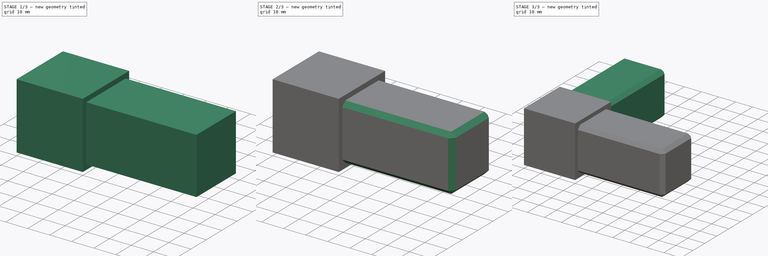
[diagram: build sequence overview — one tinted view per stage of 3, left to right]
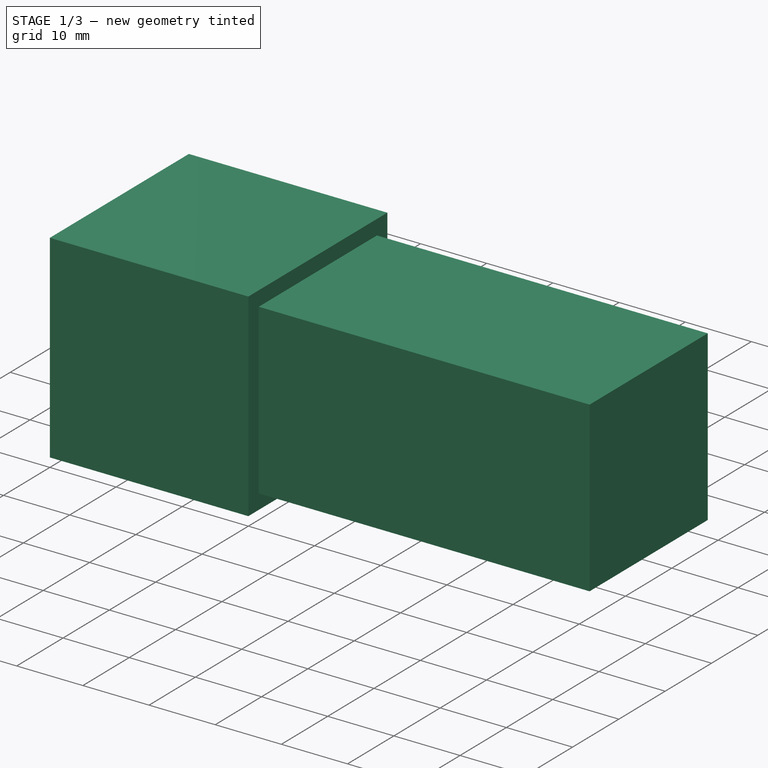
[diagram: stage 1 of 3 — iso view after this stage's code; geometry added in this stage tinted green]
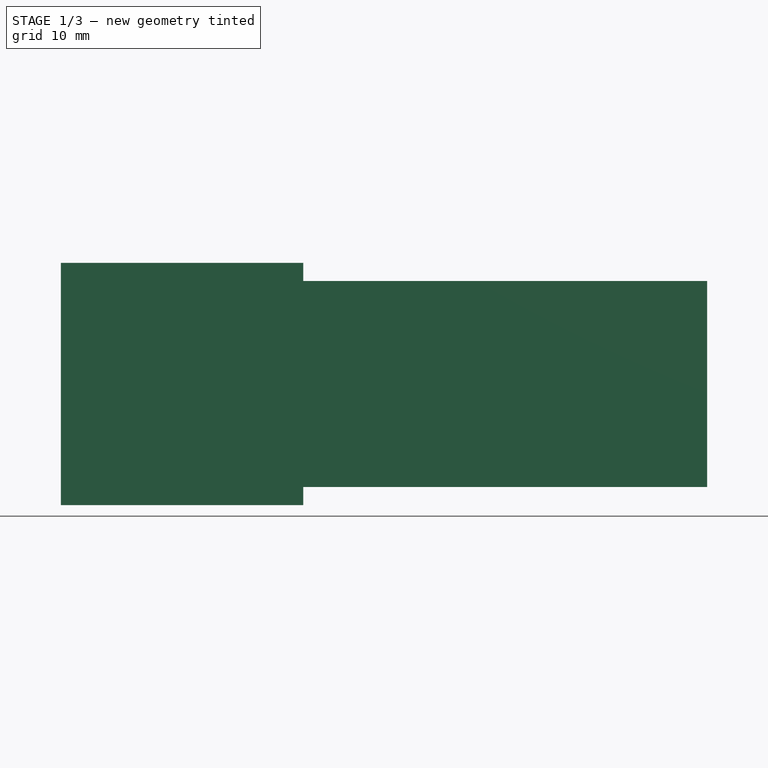
[diagram: stage 1 of 3 — front view after this stage's code; geometry added in this stage tinted green]
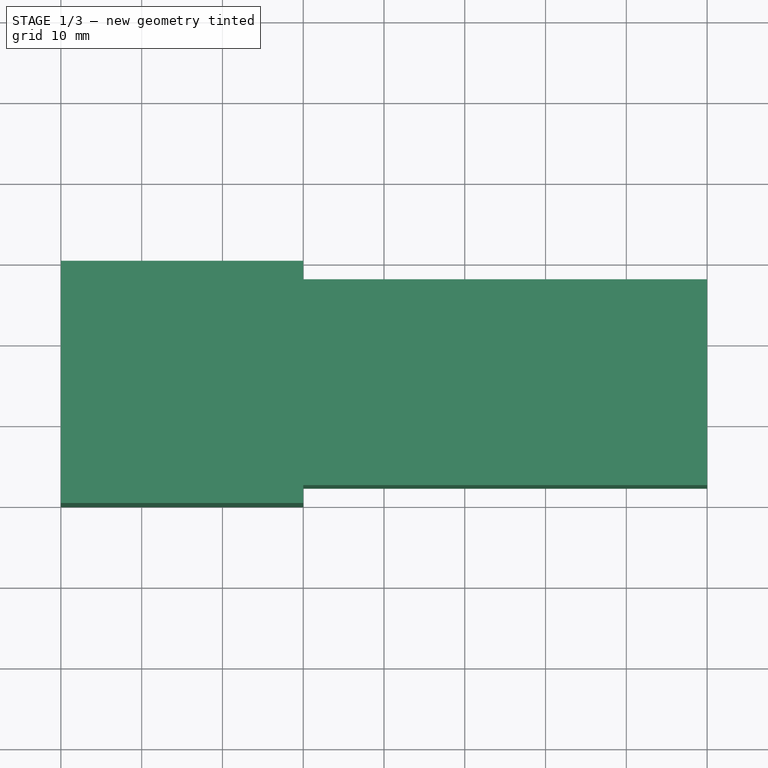
[diagram: stage 1 of 3 — top view after this stage's code; geometry added in this stage tinted green]
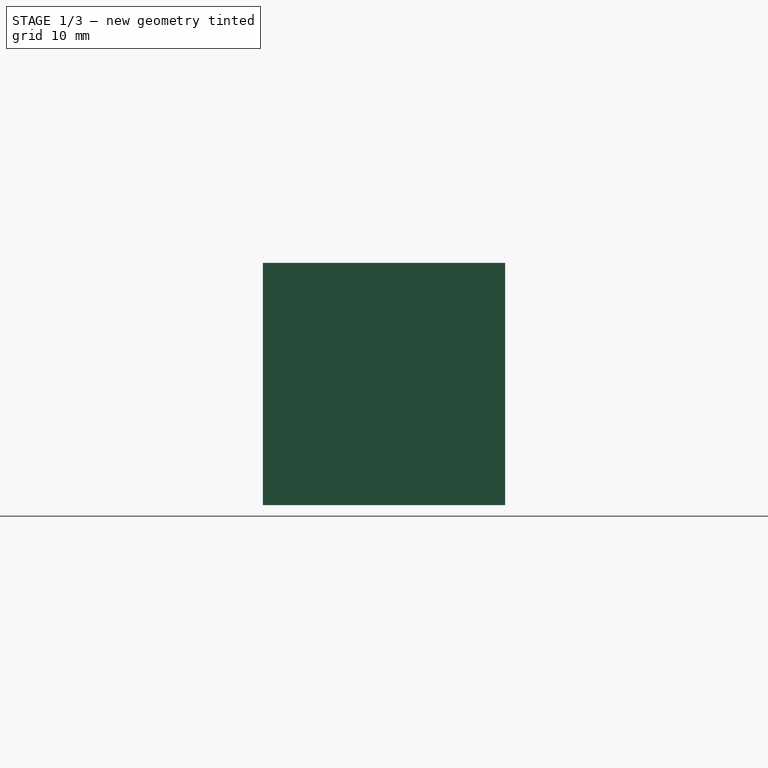
[diagram: stage 1 of 3 — right view after this stage's code; geometry added in this stage tinted green]
FCSTD DOCUMENT  (FreeCAD 0.20R29603 (Git))
Label: Eckverbinder
License: All rights reserved
LicenseURL: http://en.wikipedia.org/wiki/All_rights_reserved
objects: Sketcher::SketchObject×3, PartDesign::Pad×3, PartDesign::Chamfer×2, PartDesign::Body×1
note: 14 computed .brp shape members not serialized (recipe doc carries the construction recipe); baked Part::Feature solids carry a one-line shape summary decoded from their .brp

FEATURE [Sketcher::SketchObject] Sketch007
  FullyConstrained = true
  MapMode = 5
  Placement = pos=(0,0,0) rot=(1,0,0;1.5708rad)
  Support = -> [XZ_Plane005]
  sketch-geometry (4):
    g0: LineSegment StartX=0 StartY=0 StartZ=0 EndX=-30 EndY=0 EndZ=0
    g1: LineSegment StartX=-30 StartY=0 StartZ=0 EndX=-30 EndY=-30 EndZ=0
    g2: LineSegment StartX=-30 StartY=-30 StartZ=0 EndX=0 EndY=-30 EndZ=0
    g3: LineSegment StartX=0 StartY=-30 StartZ=0 EndX=0 EndY=0 EndZ=0
  constraints (11):
    c: Coincident(g0,g1)
    c: Coincident(g1,g2)
    c: Coincident(g2,g3)
    c: Coincident(g3,g0)
    c: Horizontal(g0)
    c: Horizontal(g2)
    c: Vertical(g1)
    c: Vertical(g3)
    c: Coincident(g0,g-1)
    c: Distance(g2) = 30
    c: Distance(g3) = 30
FEATURE [PartDesign::Pad] Pad007
  Direction = (0,-1,2e-16)
  Length = 30
  Length2 = 10
  Placement = pos=(0,0,0) rot=(1,0,0;1.5708rad)
  Profile = -> Sketch007
  ReferenceAxis = -> Sketch007 [N_Axis]
  Type = 0
FEATURE [Sketcher::SketchObject] Sketch008
  ExternalGeometry = -> [Pad007]
  FullyConstrained = true
  MapMode = 5
  Placement = pos=(0,0,0) rot=(0.707107,0,0.707107;3.14159rad)
  Support = -> [Pad007]
  sketch-geometry (4):
    g0: LineSegment StartX=-27.75 StartY=27.75 StartZ=0 EndX=-2.25 EndY=27.75 EndZ=0
    g1: LineSegment StartX=-2.25 StartY=27.75 StartZ=0 EndX=-2.25 EndY=2.25 EndZ=0
    g2: LineSegment StartX=-2.25 StartY=2.25 StartZ=0 EndX=-27.75 EndY=2.25 EndZ=0
    g3: LineSegment StartX=-27.75 StartY=2.25 StartZ=0 EndX=-27.75 EndY=27.75 EndZ=0
  constraints (12):
    c: Coincident(g0,g1)
    c: Coincident(g1,g2)
    c: Coincident(g2,g3)
    c: Coincident(g3,g0)
    c: Horizontal(g0)
    c: Horizontal(g2)
    c: Vertical(g1)
    c: Vertical(g3)
    c: Distance(g1) = 25.5
    c: Distance(g0) = 25.5
    c: Distance(g2,g-4) = 2.25
    c: Distance(g0,g-3) = 2.25
FEATURE [PartDesign::Pad] Pad008
  BaseFeature = -> Pad007
  Direction = (1,0,-2e-16)
  Length = 50
  Length2 = 10
  Placement = pos=(0,0,0) rot=(1,0,0;1.5708rad)
  Profile = -> Sketch008
  ReferenceAxis = -> Sketch008 [N_Axis]
  Type = 0
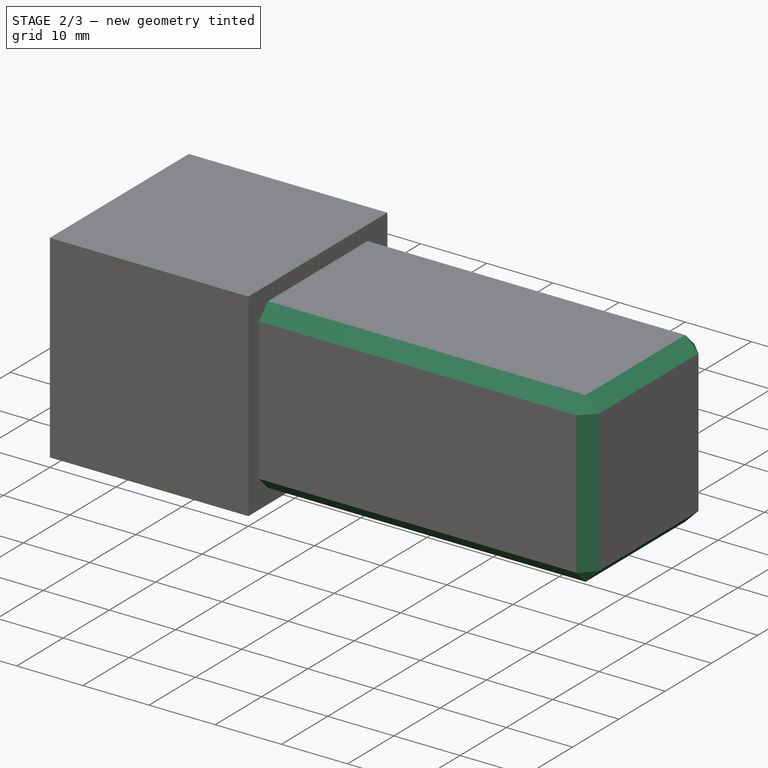
[diagram: stage 2 of 3 — iso view after this stage's code; geometry added in this stage tinted green]
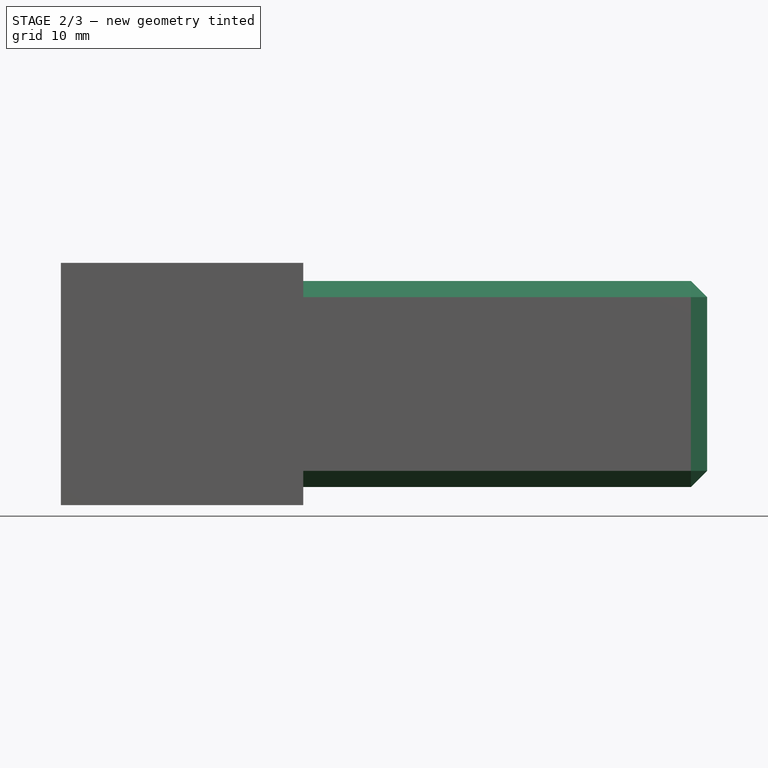
[diagram: stage 2 of 3 — front view after this stage's code; geometry added in this stage tinted green]
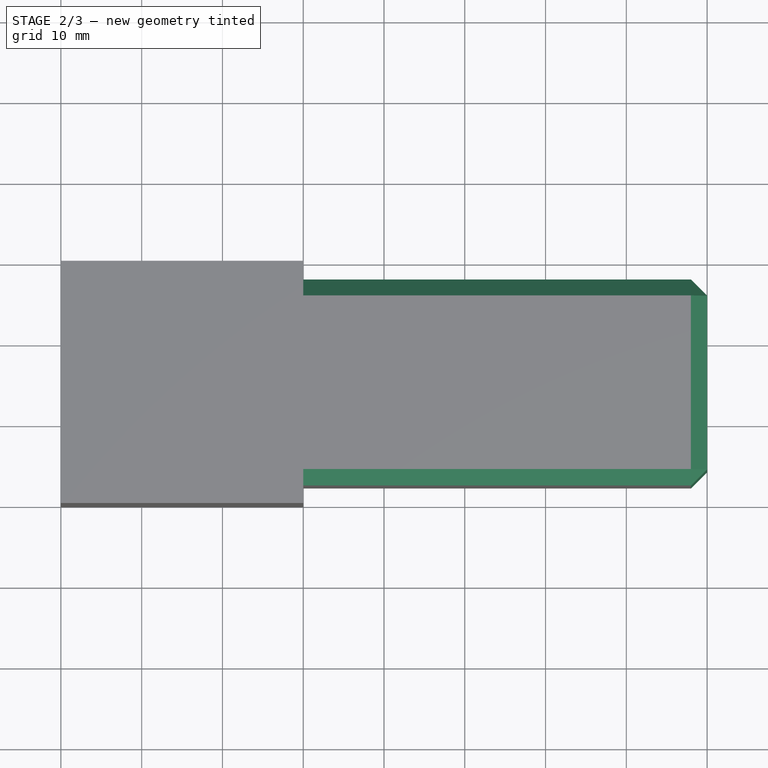
[diagram: stage 2 of 3 — top view after this stage's code; geometry added in this stage tinted green]
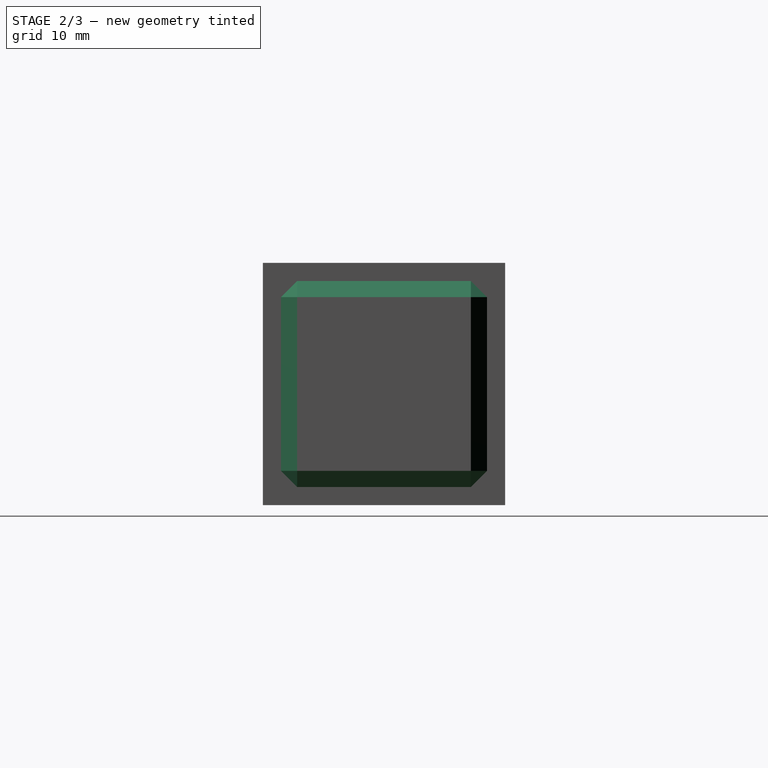
[diagram: stage 2 of 3 — right view after this stage's code; geometry added in this stage tinted green]
FEATURE [PartDesign::Chamfer] Chamfer002
  Angle = 45
  Base = -> Pad008 [Edge18,Edge17,Edge19,Edge21,Edge24,Edge23,Edge20,Edge22]
  BaseFeature = -> Pad008
  ChamferType = 0
  FlipDirection = false
  Placement = pos=(0,0,0) rot=(1,0,0;1.5708rad)
  Size = 2
  Size2 = 1
  SupportTransform = false
  UseAllEdges = false
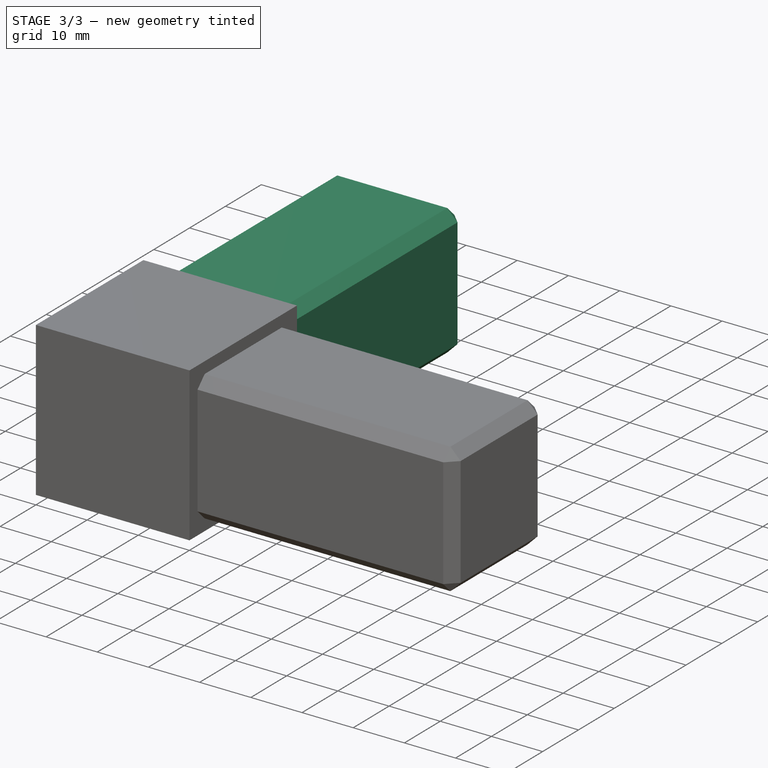
[diagram: stage 3 of 3 — iso view after this stage's code; geometry added in this stage tinted green]
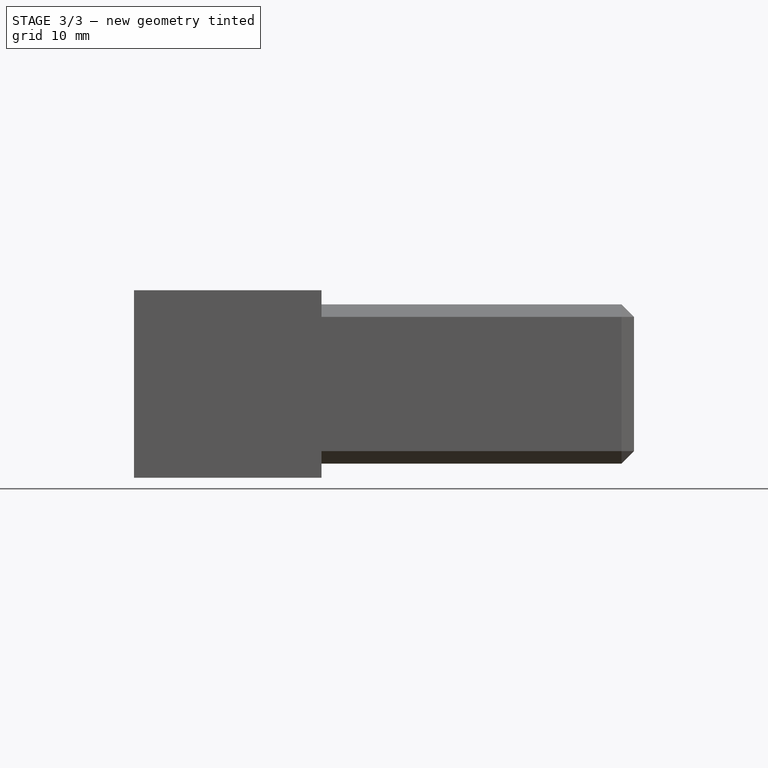
[diagram: stage 3 of 3 — front view after this stage's code; geometry added in this stage tinted green]
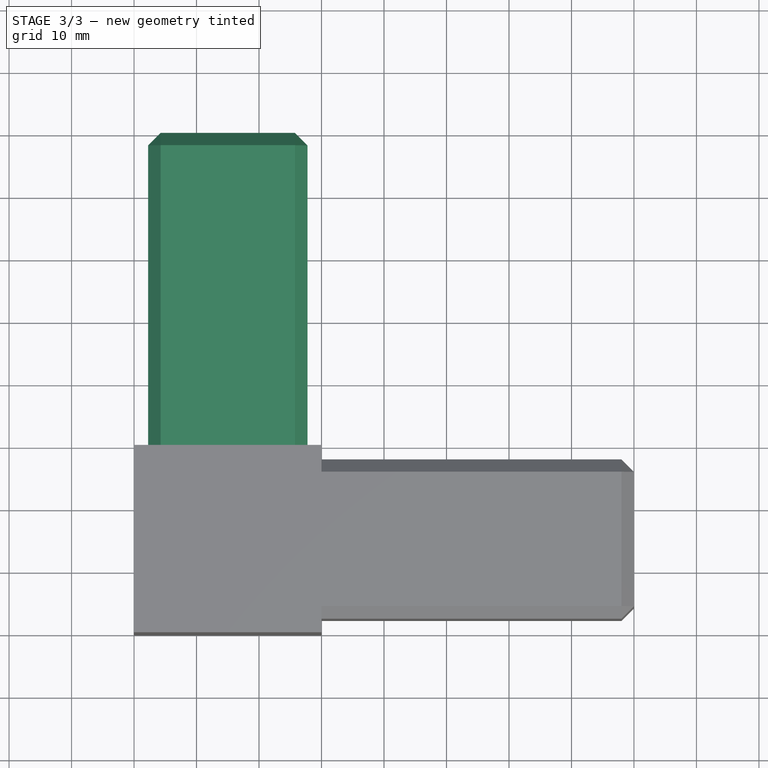
[diagram: stage 3 of 3 — top view after this stage's code; geometry added in this stage tinted green]
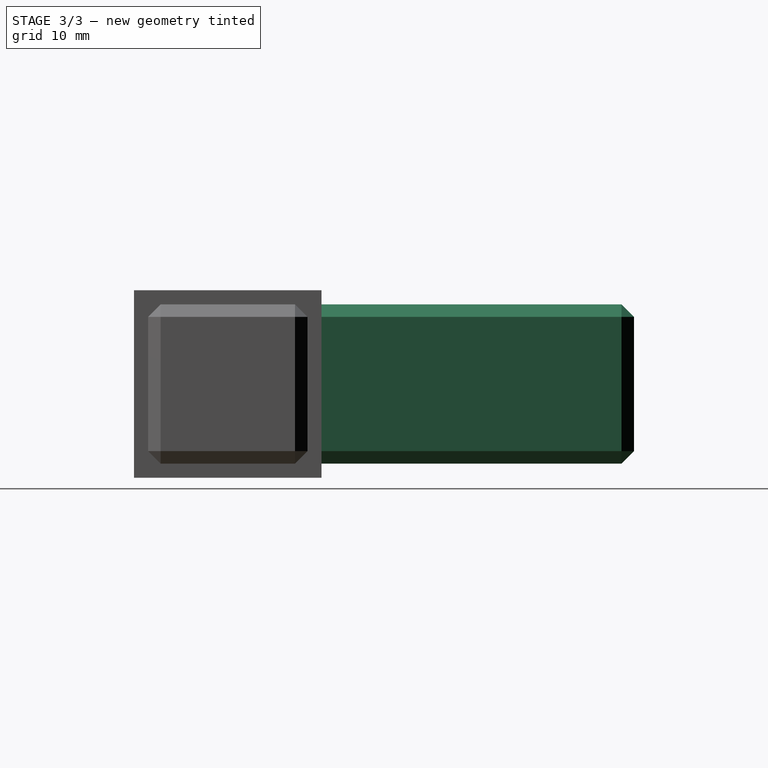
[diagram: stage 3 of 3 — right view after this stage's code; geometry added in this stage tinted green]
FEATURE [Sketcher::SketchObject] Sketch009
  ExternalGeometry = -> [Chamfer002]
  FullyConstrained = true
  MapMode = 5
  Placement = pos=(0,0,0) rot=(-1,0,0;1.5708rad)
  Support = -> [Chamfer002]
  sketch-geometry (4):
    g0: LineSegment StartX=-27.75 StartY=27.75 StartZ=0 EndX=-2.25 EndY=27.75 EndZ=0
    g1: LineSegment StartX=-2.25 StartY=27.75 StartZ=0 EndX=-2.25 EndY=2.25 EndZ=0
    g2: LineSegment StartX=-2.25 StartY=2.25 StartZ=0 EndX=-27.75 EndY=2.25 EndZ=0
    g3: LineSegment StartX=-27.75 StartY=2.25 StartZ=0 EndX=-27.75 EndY=27.75 EndZ=0
  constraints (12):
    c: Coincident(g0,g1)
    c: Coincident(g1,g2)
    c: Coincident(g2,g3)
    c: Coincident(g3,g0)
    c: Horizontal(g0)
    c: Horizontal(g2)
    c: Vertical(g1)
    c: Vertical(g3)
    c: Distance(g0) = 25.5
    c: Distance(g3) = 25.5
    c: Distance(g0,g-3) = 2.25
    c: Distance(g0,g-4) = 2.25
FEATURE [PartDesign::Pad] Pad009
  BaseFeature = -> Chamfer002
  Direction = (0,1,-4e-16)
  Length = 50
  Length2 = 10
  Placement = pos=(0,0,0) rot=(1,0,0;1.5708rad)
  Profile = -> Sketch009
  ReferenceAxis = -> Sketch009 [N_Axis]
  Type = 0
FEATURE [PartDesign::Chamfer] Chamfer003
  Angle = 45
  Base = -> Pad009 [Edge59,Edge60,Edge55,Edge57,Edge53,Edge54,Edge56,Edge58]
  BaseFeature = -> Pad009
  ChamferType = 0
  FlipDirection = false
  Placement = pos=(0,0,0) rot=(1,0,0;1.5708rad)
  Size = 2
  Size2 = 1
  SupportTransform = false
  UseAllEdges = false
FEATURE [PartDesign::Body] Body005  label="Eckverbinder 30x30x2 002"
  Group = -> [Sketch007,Pad007,Sketch008,Pad008,Chamfer002,Sketch009,Pad009,Chamfer003]
  Origin = -> Origin005
  Tip = -> Chamfer003
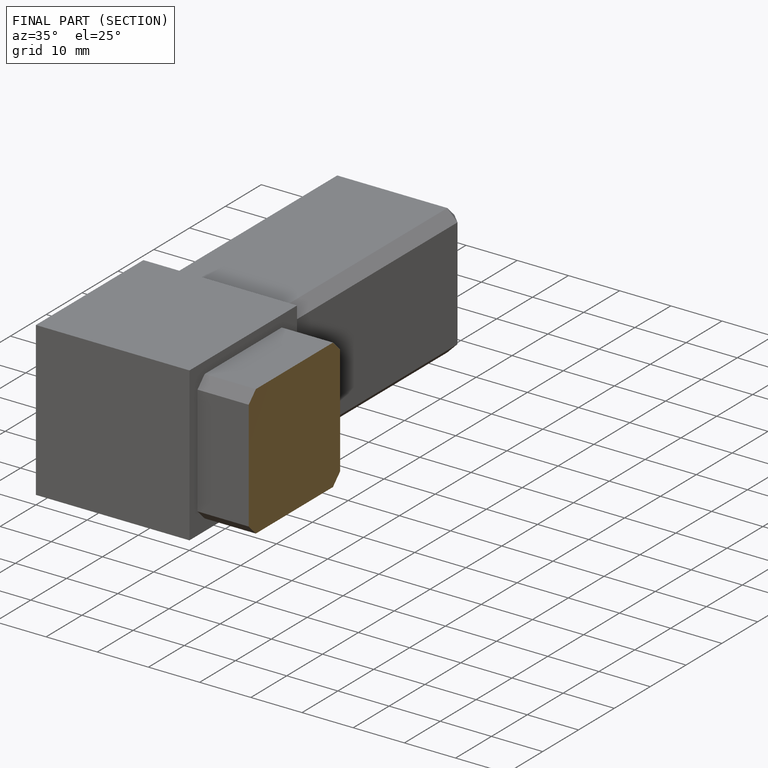
[diagram: finished part — half-section view (interior)]
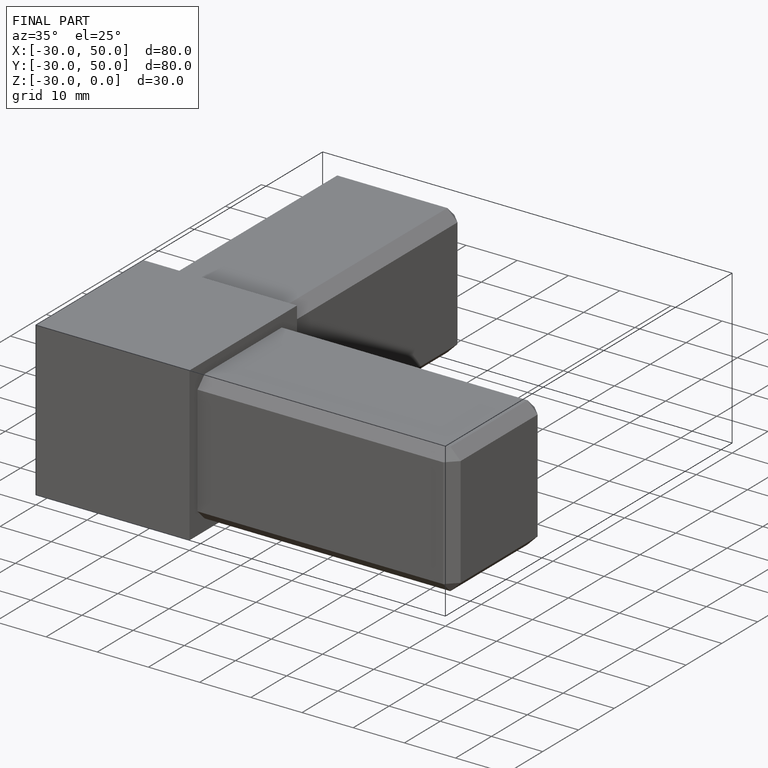
[diagram: finished part — iso view with bounding-box wireframe]
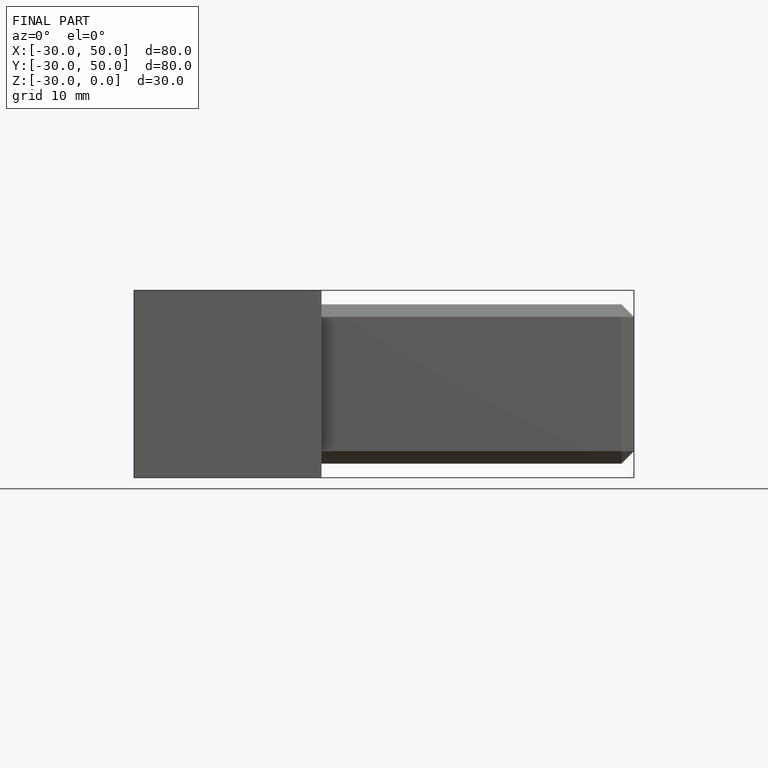
[diagram: finished part — front view with bounding-box wireframe]
